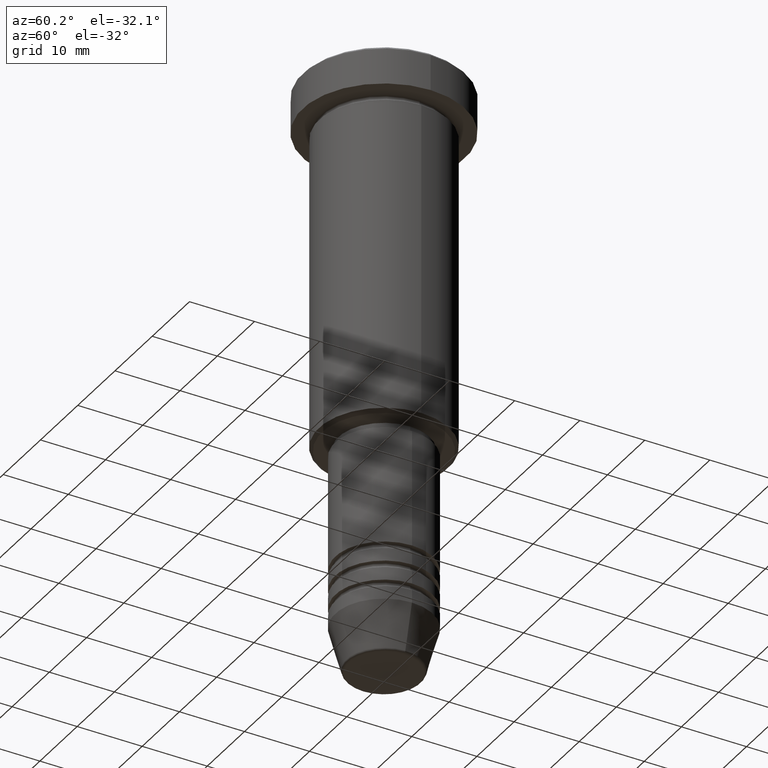
[diagram: clean part render]
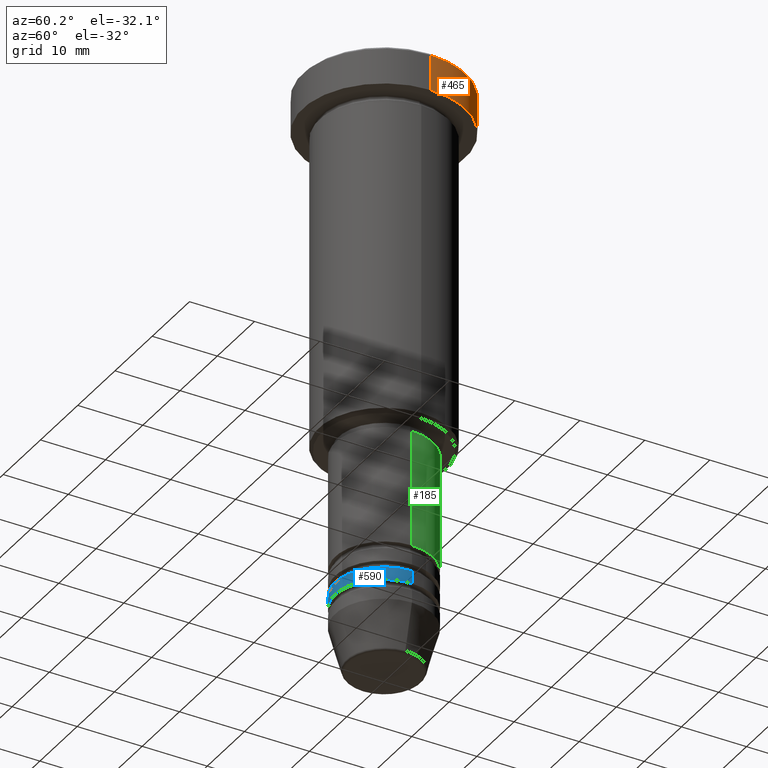
[diagram: same view with three faces highlighted in distinct colors, each labeled with its STEP entity id]
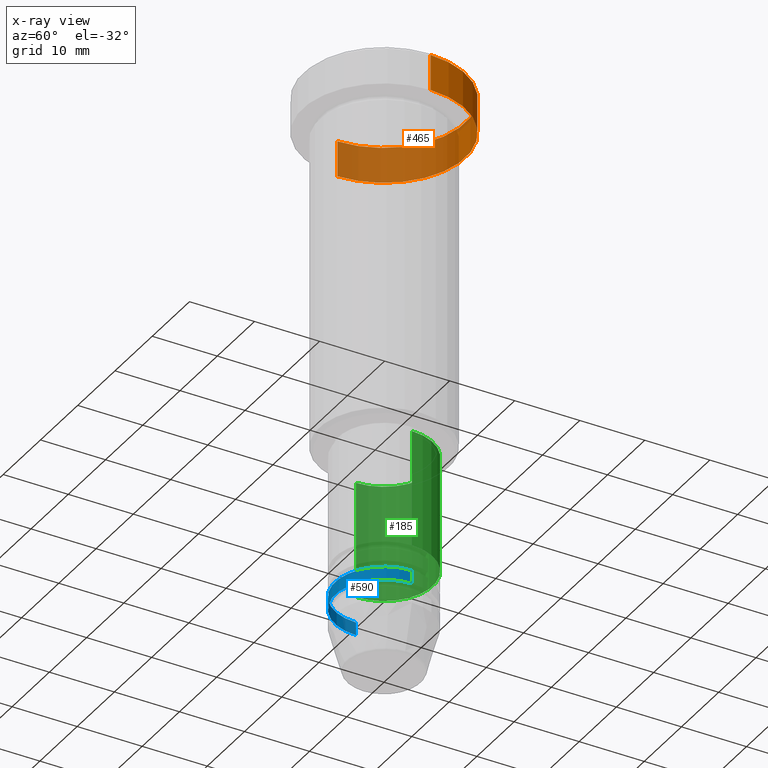
[diagram: x-ray of the same camera — body ghosted, the three highlighted faces saturated]
A machine part, auxiliary view with three faces highlighted in distinct colors.
The next image is the same camera in x-ray (body ghosted, the three faces saturated) — at least one of them is partly hidden behind the body in this view.
Their STEP definitions:

[orange] entity #465 — the highlighted cylindrical surface (partial cylindrical patch) has radius 12.5 mm, axis along (-0, -0, 1).
#3 = CARTESIAN_POINT ( 'NONE',  ( 12.50000000000000000, 0.000000000000000000, 0.000000000000000000 ) ) ;
#43 = AXIS2_PLACEMENT_3D ( 'NONE', #334, #431, #625 ) ;
#120 = CARTESIAN_POINT ( 'NONE',  ( -12.50000000000000000, 1.530808498934191521E-15, 0.000000000000000000 ) ) ;
#131 = VERTEX_POINT ( 'NONE', #312 ) ;
#135 = CARTESIAN_POINT ( 'NONE',  ( 12.50000000000000000, 0.000000000000000000, -5.999999999999996447 ) ) ;
#184 = LINE ( 'NONE', #3, #524 ) ;
#211 = ORIENTED_EDGE ( 'NONE', *, *, #215, .T. ) ;
#215 = EDGE_CURVE ( 'NONE', #324, #131, #250, .T. ) ;
#250 = CIRCLE ( 'NONE', #521, 12.50000000000000000 ) ;
#294 = ORIENTED_EDGE ( 'NONE', *, *, #726, .F. ) ;
#312 = CARTESIAN_POINT ( 'NONE',  ( 12.50000000000000000, 0.000000000000000000, -0.5000000000000196509 ) ) ;
#317 = VERTEX_POINT ( 'NONE', #135 ) ;
#324 = VERTEX_POINT ( 'NONE', #795 ) ;
#334 = CARTESIAN_POINT ( 'NONE',  ( 0.000000000000000000, 0.000000000000000000, -5.999999999999996447 ) ) ;
#340 = DIRECTION ( 'NONE',  ( 1.000000000000000000, 0.000000000000000000, 0.000000000000000000 ) ) ;
#387 = VECTOR ( 'NONE', #1134, 1000.000000000000000 ) ;
#431 = DIRECTION ( 'NONE',  ( -0.000000000000000000, -0.000000000000000000, 1.000000000000000000 ) ) ;
#450 = DIRECTION ( 'NONE',  ( 1.000000000000000000, 0.000000000000000000, 0.000000000000000000 ) ) ;
#465 = ADVANCED_FACE ( 'NONE', ( #1004 ), #1084, .T. ) ;
#521 = AXIS2_PLACEMENT_3D ( 'NONE', #988, #607, #340 ) ;
#524 = VECTOR ( 'NONE', #542, 1000.000000000000000 ) ;
#533 = EDGE_LOOP ( 'NONE', ( #1049, #612, #211, #294 ) ) ;
#542 = DIRECTION ( 'NONE',  ( -0.000000000000000000, -0.000000000000000000, 1.000000000000000000 ) ) ;
#607 = DIRECTION ( 'NONE',  ( 0.000000000000000000, 0.000000000000000000, -1.000000000000000000 ) ) ;
#612 = ORIENTED_EDGE ( 'NONE', *, *, #855, .T. ) ;
#625 = DIRECTION ( 'NONE',  ( 1.000000000000000000, 0.000000000000000000, 0.000000000000000000 ) ) ;
#628 = CARTESIAN_POINT ( 'NONE',  ( 0.000000000000000000, 0.000000000000000000, 0.000000000000000000 ) ) ;
#698 = AXIS2_PLACEMENT_3D ( 'NONE', #628, #1009, #450 ) ;
#726 = EDGE_CURVE ( 'NONE', #317, #131, #184, .T. ) ;
#795 = CARTESIAN_POINT ( 'NONE',  ( -12.50000000000000000, 1.530808498934191521E-15, -0.5000000000000196509 ) ) ;
#855 = EDGE_CURVE ( 'NONE', #943, #324, #865, .T. ) ;
#865 = LINE ( 'NONE', #120, #387 ) ;
#943 = VERTEX_POINT ( 'NONE', #945 ) ;
#945 = CARTESIAN_POINT ( 'NONE',  ( -12.50000000000000000, 1.530808498934191521E-15, -5.999999999999996447 ) ) ;
#987 = CIRCLE ( 'NONE', #43, 12.50000000000000000 ) ;
#988 = CARTESIAN_POINT ( 'NONE',  ( 0.000000000000000000, 0.000000000000000000, -0.5000000000000196509 ) ) ;
#1004 = FACE_OUTER_BOUND ( 'NONE', #533, .T. ) ;
#1009 = DIRECTION ( 'NONE',  ( -0.000000000000000000, -0.000000000000000000, 1.000000000000000000 ) ) ;
#1049 = ORIENTED_EDGE ( 'NONE', *, *, #1086, .T. ) ;
#1084 = CYLINDRICAL_SURFACE ( 'NONE', #698, 12.50000000000000000 ) ;
#1086 = EDGE_CURVE ( 'NONE', #317, #943, #987, .T. ) ;
#1134 = DIRECTION ( 'NONE',  ( -0.000000000000000000, -0.000000000000000000, 1.000000000000000000 ) ) ;

[blue] entity #590 — the highlighted cylindrical surface (partial cylindrical patch) has radius 7.5 mm, axis along (-0, -0, 1).
#17 = DIRECTION ( 'NONE',  ( -0.000000000000000000, -0.000000000000000000, 1.000000000000000000 ) ) ;
#28 = EDGE_CURVE ( 'NONE', #504, #316, #529, .T. ) ;
#51 = VERTEX_POINT ( 'NONE', #769 ) ;
#55 = ORIENTED_EDGE ( 'NONE', *, *, #620, .T. ) ;
#107 = CARTESIAN_POINT ( 'NONE',  ( 7.500000000000000000, 0.000000000000000000, 0.000000000000000000 ) ) ;
#112 = VECTOR ( 'NONE', #1062, 1000.000000000000000 ) ;
#138 = EDGE_LOOP ( 'NONE', ( #496, #275, #55, #511 ) ) ;
#176 = CARTESIAN_POINT ( 'NONE',  ( 7.500000000000000000, 0.000000000000000000, -78.99999999999998579 ) ) ;
#196 = LINE ( 'NONE', #107, #1088 ) ;
#244 = CARTESIAN_POINT ( 'NONE',  ( -7.500000000000000000, 9.184850993605147944E-16, -78.99999999999998579 ) ) ;
#275 = ORIENTED_EDGE ( 'NONE', *, *, #438, .T. ) ;
#288 = DIRECTION ( 'NONE',  ( -0.000000000000000000, -0.000000000000000000, 1.000000000000000000 ) ) ;
#304 = CIRCLE ( 'NONE', #651, 7.500000000000000000 ) ;
#316 = VERTEX_POINT ( 'NONE', #244 ) ;
#331 = DIRECTION ( 'NONE',  ( 1.000000000000000000, 0.000000000000000000, 0.000000000000000000 ) ) ;
#436 = VERTEX_POINT ( 'NONE', #176 ) ;
#438 = EDGE_CURVE ( 'NONE', #504, #51, #304, .T. ) ;
#464 = CARTESIAN_POINT ( 'NONE',  ( 0.000000000000000000, 0.000000000000000000, 0.000000000000000000 ) ) ;
#496 = ORIENTED_EDGE ( 'NONE', *, *, #28, .F. ) ;
#504 = VERTEX_POINT ( 'NONE', #914 ) ;
#511 = ORIENTED_EDGE ( 'NONE', *, *, #1013, .F. ) ;
#529 = LINE ( 'NONE', #693, #112 ) ;
#565 = DIRECTION ( 'NONE',  ( 1.000000000000000000, 0.000000000000000000, 0.000000000000000000 ) ) ;
#590 = ADVANCED_FACE ( 'NONE', ( #929 ), #1111, .T. ) ;
#599 = CIRCLE ( 'NONE', #1016, 7.500000000000000000 ) ;
#620 = EDGE_CURVE ( 'NONE', #51, #436, #196, .T. ) ;
#651 = AXIS2_PLACEMENT_3D ( 'NONE', #994, #819, #1168 ) ;
#693 = CARTESIAN_POINT ( 'NONE',  ( -7.500000000000000000, 9.184850993605147944E-16, 0.000000000000000000 ) ) ;
#737 = AXIS2_PLACEMENT_3D ( 'NONE', #464, #288, #565 ) ;
#769 = CARTESIAN_POINT ( 'NONE',  ( 7.500000000000000000, 0.000000000000000000, -80.99999999999998579 ) ) ;
#819 = DIRECTION ( 'NONE',  ( -0.000000000000000000, -0.000000000000000000, 1.000000000000000000 ) ) ;
#914 = CARTESIAN_POINT ( 'NONE',  ( -7.500000000000000000, 9.184850993605147944E-16, -80.99999999999998579 ) ) ;
#929 = FACE_OUTER_BOUND ( 'NONE', #138, .T. ) ;
#979 = CARTESIAN_POINT ( 'NONE',  ( 0.000000000000000000, 0.000000000000000000, -78.99999999999998579 ) ) ;
#994 = CARTESIAN_POINT ( 'NONE',  ( 0.000000000000000000, 0.000000000000000000, -80.99999999999998579 ) ) ;
#1013 = EDGE_CURVE ( 'NONE', #316, #436, #599, .T. ) ;
#1016 = AXIS2_PLACEMENT_3D ( 'NONE', #979, #1141, #331 ) ;
#1062 = DIRECTION ( 'NONE',  ( -0.000000000000000000, -0.000000000000000000, 1.000000000000000000 ) ) ;
#1088 = VECTOR ( 'NONE', #17, 1000.000000000000000 ) ;
#1111 = CYLINDRICAL_SURFACE ( 'NONE', #737, 7.500000000000000000 ) ;
#1141 = DIRECTION ( 'NONE',  ( -0.000000000000000000, -0.000000000000000000, 1.000000000000000000 ) ) ;
#1168 = DIRECTION ( 'NONE',  ( 1.000000000000000000, 0.000000000000000000, 0.000000000000000000 ) ) ;

[green] entity #185 — the highlighted cylindrical surface (partial cylindrical patch) has radius 7.5 mm, axis along (-0, -0, 1).
#14 = AXIS2_PLACEMENT_3D ( 'NONE', #522, #982, #68 ) ;
#18 = VECTOR ( 'NONE', #918, 1000.000000000000000 ) ;
#61 = ORIENTED_EDGE ( 'NONE', *, *, #434, .F. ) ;
#68 = DIRECTION ( 'NONE',  ( 1.000000000000000000, 0.000000000000000000, 0.000000000000000000 ) ) ;
#156 = VERTEX_POINT ( 'NONE', #841 ) ;
#185 = ADVANCED_FACE ( 'NONE', ( #1157 ), #1051, .T. ) ;
#187 = ORIENTED_EDGE ( 'NONE', *, *, #948, .T. ) ;
#193 = CARTESIAN_POINT ( 'NONE',  ( 7.500000000000000000, 0.000000000000000000, 0.000000000000000000 ) ) ;
#209 = EDGE_LOOP ( 'NONE', ( #187, #1131, #61, #298 ) ) ;
#262 = LINE ( 'NONE', #193, #18 ) ;
#298 = ORIENTED_EDGE ( 'NONE', *, *, #812, .F. ) ;
#351 = VECTOR ( 'NONE', #953, 1000.000000000000000 ) ;
#360 = AXIS2_PLACEMENT_3D ( 'NONE', #1083, #1000, #631 ) ;
#362 = CIRCLE ( 'NONE', #360, 7.500000000000000000 ) ;
#372 = CARTESIAN_POINT ( 'NONE',  ( -7.500000000000000000, 9.184850993605147944E-16, -74.99999999999998579 ) ) ;
#381 = DIRECTION ( 'NONE',  ( -0.000000000000000000, -0.000000000000000000, 1.000000000000000000 ) ) ;
#434 = EDGE_CURVE ( 'NONE', #156, #779, #362, .T. ) ;
#476 = CARTESIAN_POINT ( 'NONE',  ( 0.000000000000000000, 0.000000000000000000, -74.99999999999998579 ) ) ;
#522 = CARTESIAN_POINT ( 'NONE',  ( 0.000000000000000000, 0.000000000000000000, 0.000000000000000000 ) ) ;
#531 = CARTESIAN_POINT ( 'NONE',  ( 7.500000000000000000, 0.000000000000000000, -74.99999999999998579 ) ) ;
#585 = VERTEX_POINT ( 'NONE', #372 ) ;
#631 = DIRECTION ( 'NONE',  ( 1.000000000000000000, 0.000000000000000000, 0.000000000000000000 ) ) ;
#665 = CARTESIAN_POINT ( 'NONE',  ( -7.500000000000000000, 9.184850993605147944E-16, 0.000000000000000000 ) ) ;
#772 = DIRECTION ( 'NONE',  ( 1.000000000000000000, 0.000000000000000000, 0.000000000000000000 ) ) ;
#779 = VERTEX_POINT ( 'NONE', #926 ) ;
#812 = EDGE_CURVE ( 'NONE', #1136, #156, #262, .T. ) ;
#841 = CARTESIAN_POINT ( 'NONE',  ( 7.500000000000000000, 0.000000000000000000, -57.00000000000000000 ) ) ;
#848 = AXIS2_PLACEMENT_3D ( 'NONE', #476, #381, #772 ) ;
#895 = EDGE_CURVE ( 'NONE', #585, #779, #1108, .T. ) ;
#918 = DIRECTION ( 'NONE',  ( -0.000000000000000000, -0.000000000000000000, 1.000000000000000000 ) ) ;
#926 = CARTESIAN_POINT ( 'NONE',  ( -7.500000000000000000, 9.184850993605147944E-16, -57.00000000000000000 ) ) ;
#948 = EDGE_CURVE ( 'NONE', #1136, #585, #969, .T. ) ;
#953 = DIRECTION ( 'NONE',  ( -0.000000000000000000, -0.000000000000000000, 1.000000000000000000 ) ) ;
#969 = CIRCLE ( 'NONE', #848, 7.500000000000000000 ) ;
#982 = DIRECTION ( 'NONE',  ( -0.000000000000000000, -0.000000000000000000, 1.000000000000000000 ) ) ;
#1000 = DIRECTION ( 'NONE',  ( -0.000000000000000000, -0.000000000000000000, 1.000000000000000000 ) ) ;
#1051 = CYLINDRICAL_SURFACE ( 'NONE', #14, 7.500000000000000000 ) ;
#1083 = CARTESIAN_POINT ( 'NONE',  ( 0.000000000000000000, 0.000000000000000000, -57.00000000000000000 ) ) ;
#1108 = LINE ( 'NONE', #665, #351 ) ;
#1131 = ORIENTED_EDGE ( 'NONE', *, *, #895, .T. ) ;
#1136 = VERTEX_POINT ( 'NONE', #531 ) ;
#1157 = FACE_OUTER_BOUND ( 'NONE', #209, .T. ) ;